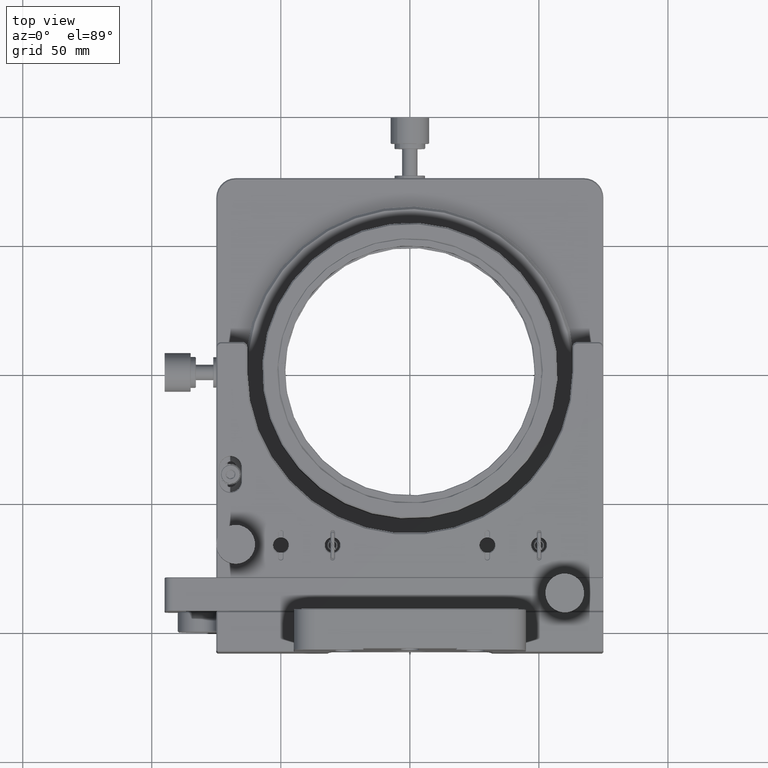
[diagram: clean part render]
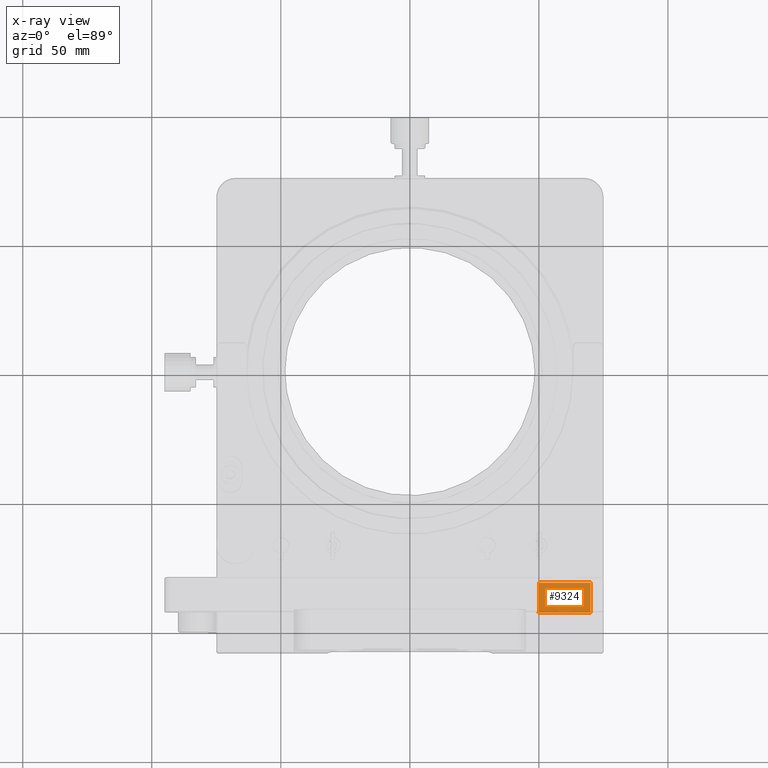
[diagram: x-ray — body ghosted, one internal face saturated and labeled with its STEP entity id]
A machine part, top view, then the same camera in x-ray: the body is ghosted and one INTERNAL B-rep face — a face not visible from any outside direction — is saturated and labeled: STEP entity #9324.
In plain terms, the highlighted planar face has unit normal (0, 0, -1).
Its self-contained STEP definition (entity closure, byte-faithful):
#171 = ORIENTED_EDGE ( 'NONE', *, *, #13269, .F. ) ;
#2202 = ORIENTED_EDGE ( 'NONE', *, *, #31215, .T. ) ;
#3073 = LINE ( 'NONE', #28273, #65975 ) ;
#5926 = DIRECTION ( 'NONE',  ( 0.000000000000000000, -1.000000000000000000, 0.000000000000000000 ) ) ;
#6322 = EDGE_CURVE ( 'NONE', #13528, #59841, #7537, .T. ) ;
#6359 = FACE_OUTER_BOUND ( 'NONE', #77834, .T. ) ;
#7537 = LINE ( 'NONE', #69734, #47329 ) ;
#8246 = ORIENTED_EDGE ( 'NONE', *, *, #32265, .T. ) ;
#9324 = ADVANCED_FACE ( 'NONE', ( #6359 ), #73861, .T. ) ;
#10336 = EDGE_CURVE ( 'NONE', #68922, #78804, #18247, .T. ) ;
#12475 = AXIS2_PLACEMENT_3D ( 'NONE', #17732, #24245, #31161 ) ;
#13269 = EDGE_CURVE ( 'NONE', #64173, #33581, #34622, .T. ) ;
#13528 = VERTEX_POINT ( 'NONE', #76825 ) ;
#15746 = EDGE_CURVE ( 'NONE', #68922, #56694, #3073, .T. ) ;
#16085 = ORIENTED_EDGE ( 'NONE', *, *, #6322, .F. ) ;
#17732 = CARTESIAN_POINT ( 'NONE',  ( -74.50000000000000000, 174.3812876625345041, -15.81719248597950056 ) ) ;
#18247 = B_SPLINE_CURVE_WITH_KNOTS ( 'NONE', 3,
 ( #51297, #39505, #57793, #62401 ),
 .UNSPECIFIED., .F., .F.,
 ( 4, 4 ),
 ( 0.003648329475445535007, 0.003976476988335590074 ),
 .UNSPECIFIED. ) ;
#24245 = DIRECTION ( 'NONE',  ( 0.000000000000000000, 0.000000000000000000, -1.000000000000000000 ) ) ;
#25376 = CARTESIAN_POINT ( 'NONE',  ( 50.00000000000000000, 8.149999999999998579, -15.81719248597950056 ) ) ;
#28273 = CARTESIAN_POINT ( 'NONE',  ( -74.50000000000000000, 7.900000000000000355, -15.81719248597950056 ) ) ;
#30293 = CARTESIAN_POINT ( 'NONE',  ( 70.25000000000000000, 7.900000000000000355, -15.81719248597950056 ) ) ;
#31161 = DIRECTION ( 'NONE',  ( 0.000000000000000000, -1.000000000000000000, 0.000000000000000000 ) ) ;
#31215 = EDGE_CURVE ( 'NONE', #78804, #59841, #50276, .T. ) ;
#32105 = DIRECTION ( 'NONE',  ( 0.7071067811865474617, -0.7071067811865474617, 0.000000000000000000 ) ) ;
#32265 = EDGE_CURVE ( 'NONE', #64173, #56694, #62997, .T. ) ;
#33559 = VECTOR ( 'NONE', #79324, 1000.000000000000000 ) ;
#33581 = VERTEX_POINT ( 'NONE', #73765 ) ;
#34622 = LINE ( 'NONE', #54903, #33559 ) ;
#35449 = CARTESIAN_POINT ( 'NONE',  ( 70.00000000000000000, 8.149999999999998579, -15.81719248597950056 ) ) ;
#37948 = LINE ( 'NONE', #61520, #48069 ) ;
#39505 = CARTESIAN_POINT ( 'NONE',  ( 49.59180221874579786, 7.927208991317189479, -15.81719248597950056 ) ) ;
#39641 = ORIENTED_EDGE ( 'NONE', *, *, #73798, .T. ) ;
#43413 = VECTOR ( 'NONE', #32105, 1000.000000000000114 ) ;
#43470 = ORIENTED_EDGE ( 'NONE', *, *, #15746, .F. ) ;
#47329 = VECTOR ( 'NONE', #5926, 1000.000000000000000 ) ;
#48069 = VECTOR ( 'NONE', #55418, 1000.000000000000000 ) ;
#48678 = DIRECTION ( 'NONE',  ( 0.7071067811865520136, 0.7071067811865431318, 0.000000000000000000 ) ) ;
#50276 = LINE ( 'NONE', #75101, #58898 ) ;
#51297 = CARTESIAN_POINT ( 'NONE',  ( 49.48594249957220370, 7.900000000000000355, -15.81719248597950056 ) ) ;
#52267 = DIRECTION ( 'NONE',  ( 1.000000000000000000, 0.000000000000000000, 0.000000000000000000 ) ) ;
#54903 = CARTESIAN_POINT ( 'NONE',  ( 70.00000000000000000, 19.40000000000000213, -15.81719248597950056 ) ) ;
#55418 = DIRECTION ( 'NONE',  ( 1.000000000000000000, 0.000000000000000000, 0.000000000000000000 ) ) ;
#56694 = VERTEX_POINT ( 'NONE', #30293 ) ;
#56888 = CARTESIAN_POINT ( 'NONE',  ( 70.00000000000000000, 8.149999999999998579, -15.81719248597950056 ) ) ;
#57793 = CARTESIAN_POINT ( 'NONE',  ( 49.69895758676889841, 7.946880836259698988, -15.81719248597950056 ) ) ;
#58898 = VECTOR ( 'NONE', #48678, 999.9999999999998863 ) ;
#59841 = VERTEX_POINT ( 'NONE', #25376 ) ;
#61520 = CARTESIAN_POINT ( 'NONE',  ( 6.798540611936259207E-15, 19.40000000000000213, -15.81719248597950056 ) ) ;
#62401 = CARTESIAN_POINT ( 'NONE',  ( 49.80764431821320670, 7.957644318213168866, -15.81719248597950056 ) ) ;
#62679 = CARTESIAN_POINT ( 'NONE',  ( 49.48594249957220370, 7.900000000000000355, -15.81719248597950056 ) ) ;
#62997 = LINE ( 'NONE', #56888, #43413 ) ;
#63250 = CARTESIAN_POINT ( 'NONE',  ( 49.80764431821320670, 7.957644318213168866, -15.81719248597950056 ) ) ;
#64173 = VERTEX_POINT ( 'NONE', #35449 ) ;
#65975 = VECTOR ( 'NONE', #52267, 1000.000000000000000 ) ;
#68922 = VERTEX_POINT ( 'NONE', #62679 ) ;
#69734 = CARTESIAN_POINT ( 'NONE',  ( 50.00000000000000000, 19.40000000000000213, -15.81719248597950056 ) ) ;
#70945 = ORIENTED_EDGE ( 'NONE', *, *, #10336, .T. ) ;
#73765 = CARTESIAN_POINT ( 'NONE',  ( 70.00000000000000000, 19.40000000000000213, -15.81719248597950056 ) ) ;
#73798 = EDGE_CURVE ( 'NONE', #13528, #33581, #37948, .T. ) ;
#73861 = PLANE ( 'NONE',  #12475 ) ;
#75101 = CARTESIAN_POINT ( 'NONE',  ( 50.00000000000000000, 8.149999999999998579, -15.81719248597950056 ) ) ;
#76825 = CARTESIAN_POINT ( 'NONE',  ( 50.00000000000000000, 19.40000000000000213, -15.81719248597950056 ) ) ;
#77834 = EDGE_LOOP ( 'NONE', ( #8246, #43470, #70945, #2202, #16085, #39641, #171 ) ) ;
#78804 = VERTEX_POINT ( 'NONE', #63250 ) ;
#79324 = DIRECTION ( 'NONE',  ( 0.000000000000000000, 1.000000000000000000, 0.000000000000000000 ) ) ;